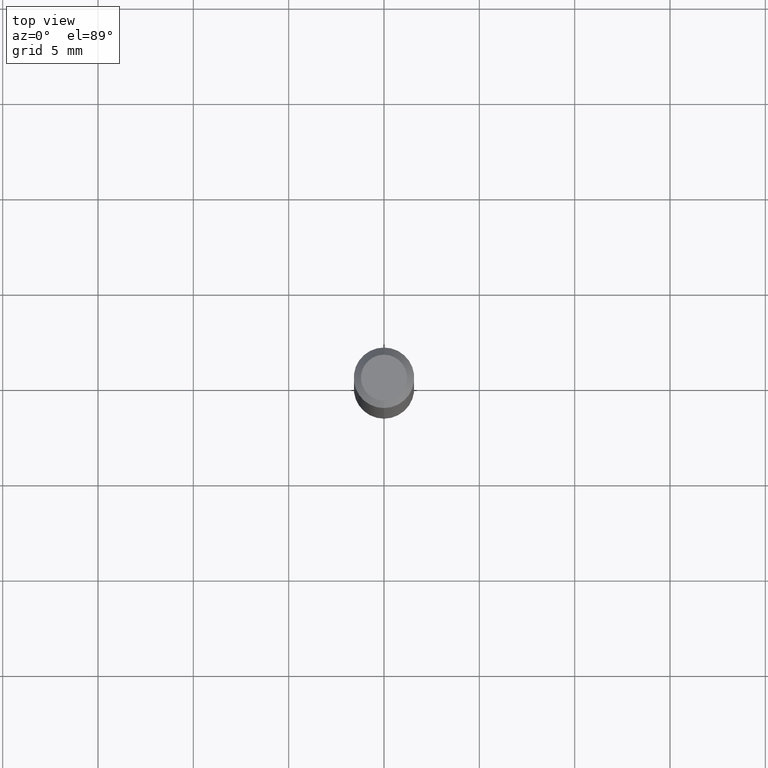
[diagram: clean part render]
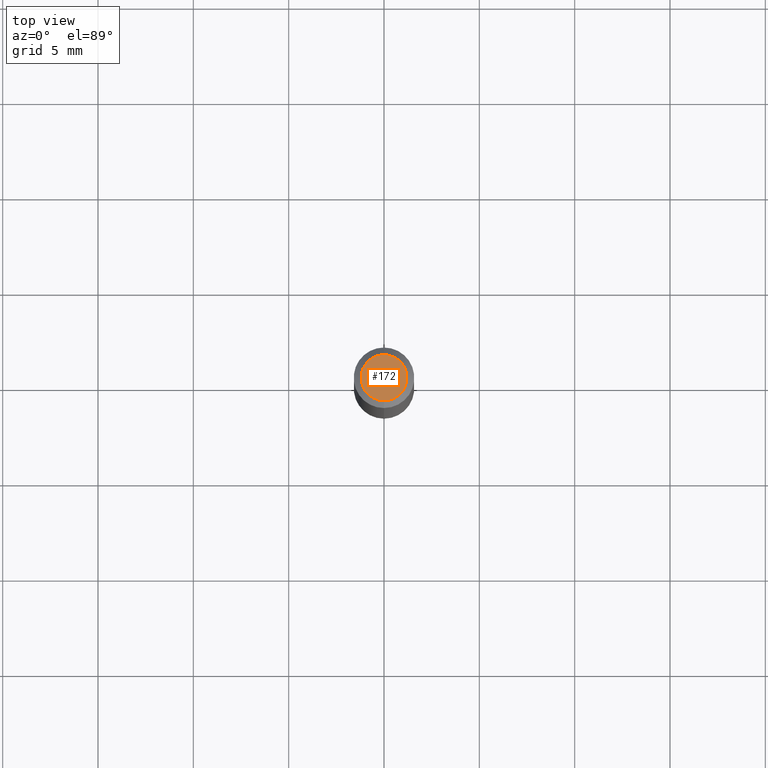
[diagram: same view with one face highlighted and labeled with its STEP entity id]
A machine part, top view. The second image highlights one B-rep face of the part: STEP entity #172.
In plain terms, the highlighted planar face has unit normal (0, -0, -1).
Its self-contained STEP definition (entity closure, byte-faithful):
#22 = ORIENTED_EDGE ( 'NONE', *, *, #470, .T. ) ;
#99 = DIRECTION ( 'NONE',  ( -6.982962677686266711E-15, -1.000000000000000000, 3.491466297446023562E-15 ) ) ;
#126 = CARTESIAN_POINT ( 'NONE',  ( -3.773273898774340269E-16, -0.04749999999999999362, 1.003437006099265876E-16 ) ) ;
#172 = ADVANCED_FACE ( 'NONE', ( #461 ), #384, .F. ) ;
#215 = AXIS2_PLACEMENT_3D ( 'NONE', #226, #467, #99 ) ;
#216 = DIRECTION ( 'NONE',  ( 6.982962677686265922E-15, 1.000000000000000000, -3.491466297446023562E-15 ) ) ;
#226 = CARTESIAN_POINT ( 'NONE',  ( 1.601812143576489830E-45, -2.286943542039958583E-31, -6.550094851875950792E-17 ) ) ;
#261 = CARTESIAN_POINT ( 'NONE',  ( 3.316907271900976096E-16, 0.04749999999999999362, -1.985951233880658618E-16 ) ) ;
#304 = AXIS2_PLACEMENT_3D ( 'NONE', #457, #445, #373 ) ;
#320 = VERTEX_POINT ( 'NONE', #126 ) ;
#329 = VERTEX_POINT ( 'NONE', #333 ) ;
#331 = CIRCLE ( 'NONE', #215, 0.04749999999999999362 ) ;
#333 = CARTESIAN_POINT ( 'NONE',  ( 3.840629472727447874E-16, 0.04749999999999999362, -2.313455976474456528E-16 ) ) ;
#337 = EDGE_CURVE ( 'NONE', #329, #320, #477, .T. ) ;
#340 = AXIS2_PLACEMENT_3D ( 'NONE', #261, #344, #216 ) ;
#344 = DIRECTION ( 'NONE',  ( 2.445479309536608532E-29, -3.491466297446023562E-15, -1.000000000000000000 ) ) ;
#373 = DIRECTION ( 'NONE',  ( -6.982962677686266711E-15, -1.000000000000000000, 3.491466297446023562E-15 ) ) ;
#384 = PLANE ( 'NONE',  #340 ) ;
#421 = ORIENTED_EDGE ( 'NONE', *, *, #337, .T. ) ;
#439 = EDGE_LOOP ( 'NONE', ( #421, #22 ) ) ;
#445 = DIRECTION ( 'NONE',  ( -2.445479309536609093E-29, 3.491466297446023562E-15, 1.000000000000000000 ) ) ;
#457 = CARTESIAN_POINT ( 'NONE',  ( 1.601812143576489830E-45, -2.286943542039958583E-31, -6.550094851875950792E-17 ) ) ;
#461 = FACE_OUTER_BOUND ( 'NONE', #439, .T. ) ;
#467 = DIRECTION ( 'NONE',  ( -2.445479309536609093E-29, 3.491466297446023562E-15, 1.000000000000000000 ) ) ;
#470 = EDGE_CURVE ( 'NONE', #320, #329, #331, .T. ) ;
#477 = CIRCLE ( 'NONE', #304, 0.04749999999999999362 ) ;